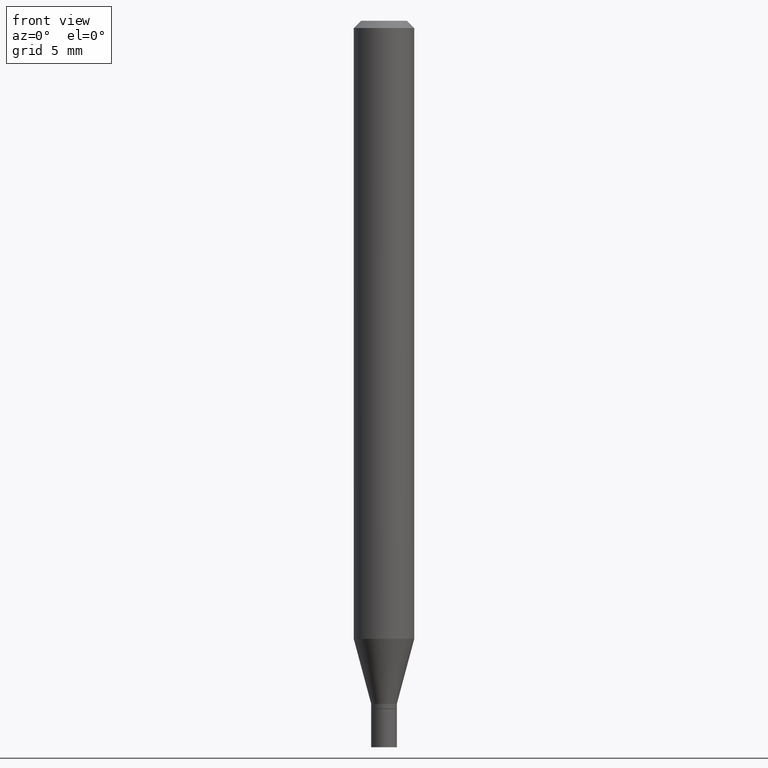
[diagram: clean part render]
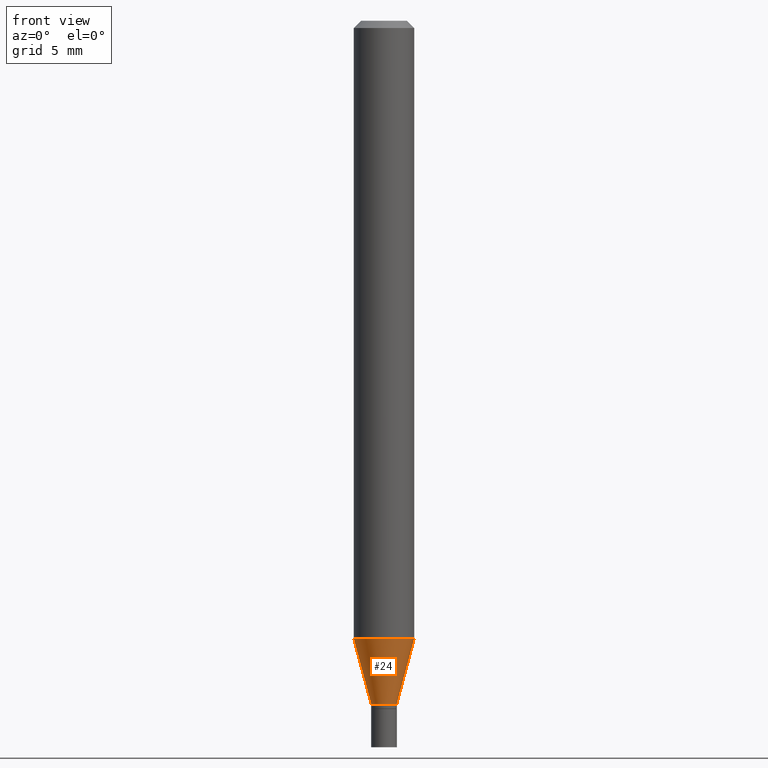
[diagram: same view with one face highlighted and labeled with its STEP entity id]
A machine part, front view. The second image highlights one B-rep face of the part: STEP entity #24.
In plain terms, the highlighted conical surface has half-angle 15 deg.
Its self-contained STEP definition (entity closure, byte-faithful):
#24 = ADVANCED_FACE ( 'NONE', ( #179 ), #338, .T. ) ;
#51 = VERTEX_POINT ( 'NONE', #272 ) ;
#56 = CIRCLE ( 'NONE', #325, 0.02649999999999992292 ) ;
#62 = DIRECTION ( 'NONE',  ( 1.000000000000000000, -6.982962677686261189E-15, 0.000000000000000000 ) ) ;
#69 = CARTESIAN_POINT ( 'NONE',  ( -0.02649999999999992292, -4.736440603461831672E-15, -1.410500000000000087 ) ) ;
#77 = DIRECTION ( 'NONE',  ( -2.445468806185136597E-29, 3.491481338843145583E-15, 1.000000000000000000 ) ) ;
#78 = VERTEX_POINT ( 'NONE', #378 ) ;
#83 = EDGE_LOOP ( 'NONE', ( #275, #343, #223, #261 ) ) ;
#85 = EDGE_CURVE ( 'NONE', #51, #125, #171, .T. ) ;
#118 = VECTOR ( 'NONE', #352, 39.37007874015748143 ) ;
#125 = VERTEX_POINT ( 'NONE', #382 ) ;
#129 = DIRECTION ( 'NONE',  ( 0.2588190451025214611, 1.565188264969620982E-15, 0.9659258262890679791 ) ) ;
#133 = CIRCLE ( 'NONE', #381, 0.06250000000000000000 ) ;
#145 = DIRECTION ( 'NONE',  ( -2.445468806185136597E-29, 3.491481338843145583E-15, 1.000000000000000000 ) ) ;
#169 = AXIS2_PLACEMENT_3D ( 'NONE', #361, #77, #318 ) ;
#171 = LINE ( 'NONE', #443, #438 ) ;
#174 = EDGE_CURVE ( 'NONE', #249, #51, #56, .T. ) ;
#179 = FACE_OUTER_BOUND ( 'NONE', #83, .T. ) ;
#185 = DIRECTION ( 'NONE',  ( 1.000000000000000000, -6.982962677686262766E-15, 0.000000000000000000 ) ) ;
#198 = CARTESIAN_POINT ( 'NONE',  ( 3.449333751124135470E-29, -4.924734428438257994E-15, -1.410500000000000087 ) ) ;
#223 = ORIENTED_EDGE ( 'NONE', *, *, #85, .T. ) ;
#237 = DIRECTION ( 'NONE',  ( -2.445468806185136597E-29, 3.491481338843145583E-15, 1.000000000000000000 ) ) ;
#249 = VERTEX_POINT ( 'NONE', #283 ) ;
#257 = EDGE_CURVE ( 'NONE', #249, #78, #458, .T. ) ;
#261 = ORIENTED_EDGE ( 'NONE', *, *, #337, .F. ) ;
#272 = CARTESIAN_POINT ( 'NONE',  ( 0.02649999999999992292, -5.109782939396942894E-15, -1.410500000000000087 ) ) ;
#275 = ORIENTED_EDGE ( 'NONE', *, *, #257, .F. ) ;
#283 = CARTESIAN_POINT ( 'NONE',  ( -0.02649999999999992292, -4.373995967520671326E-15, -1.410500000000000087 ) ) ;
#318 = DIRECTION ( 'NONE',  ( 1.000000000000000000, -6.982962677686261189E-15, 0.000000000000000000 ) ) ;
#325 = AXIS2_PLACEMENT_3D ( 'NONE', #198, #237, #62 ) ;
#337 = EDGE_CURVE ( 'NONE', #78, #125, #133, .T. ) ;
#338 = CONICAL_SURFACE ( 'NONE', #169, 0.02649999999999992292, 0.2617993877991501850 ) ;
#343 = ORIENTED_EDGE ( 'NONE', *, *, #174, .T. ) ;
#352 = DIRECTION ( 'NONE',  ( -0.2588190451025214611, 5.211531920934550253E-15, 0.9659258262890679791 ) ) ;
#361 = CARTESIAN_POINT ( 'NONE',  ( 3.449333751124135470E-29, -4.924734428438257994E-15, -1.410500000000000087 ) ) ;
#362 = CARTESIAN_POINT ( 'NONE',  ( 3.120775653135857789E-29, -4.455640541429573595E-15, -1.276146170927520584 ) ) ;
#378 = CARTESIAN_POINT ( 'NONE',  ( -0.06250000000000000000, -4.011551331579510979E-15, -1.276146170927520584 ) ) ;
#381 = AXIS2_PLACEMENT_3D ( 'NONE', #362, #145, #185 ) ;
#382 = CARTESIAN_POINT ( 'NONE',  ( 0.06250000000000000000, -4.892075708784966054E-15, -1.276146170927520584 ) ) ;
#438 = VECTOR ( 'NONE', #129, 39.37007874015748143 ) ;
#443 = CARTESIAN_POINT ( 'NONE',  ( 0.02649999999999992292, -5.109782939396942894E-15, -1.410500000000000087 ) ) ;
#458 = LINE ( 'NONE', #69, #118 ) ;